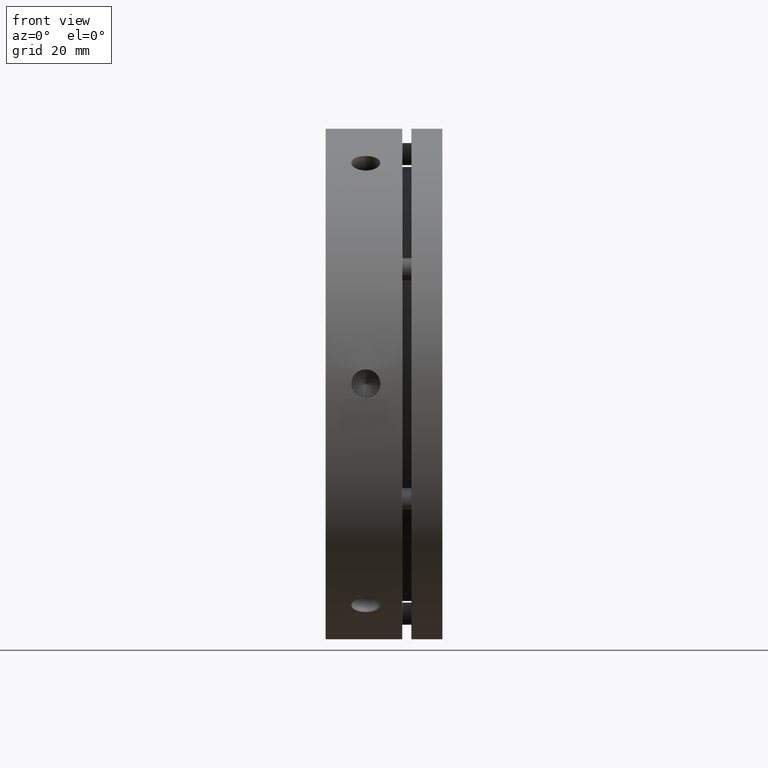
[diagram: clean part render]
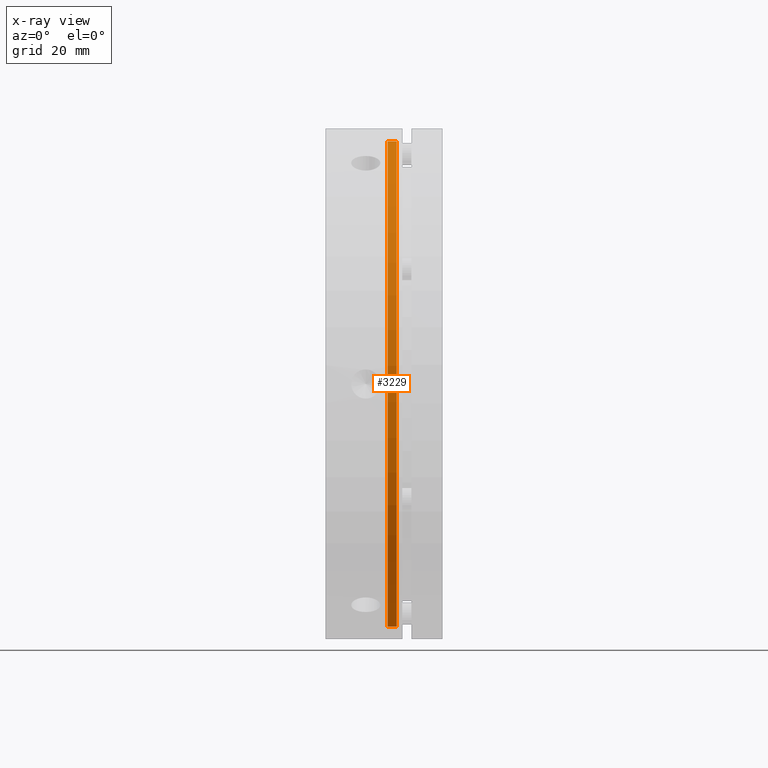
[diagram: x-ray — body ghosted, one internal face saturated and labeled with its STEP entity id]
A machine part, front view, then the same camera in x-ray: the body is ghosted and one INTERNAL B-rep face — a face not visible from any outside direction — is saturated and labeled: STEP entity #3229.
In plain terms, the highlighted cylindrical surface (partial cylindrical patch) has radius 66.5 mm, axis along (-1, 0, 0).
Its self-contained STEP definition (entity closure, byte-faithful):
#145 = EDGE_LOOP ( 'NONE', ( #1543, #1542, #1541, #1540 ) ) ;
#571 = AXIS2_PLACEMENT_3D ( 'NONE', #1281, #1282, #1283 ) ;
#589 = EDGE_CURVE ( 'NONE', #1821, #1820, #1066, .T. ) ;
#603 = EDGE_CURVE ( 'NONE', #1820, #1815, #1008, .T. ) ;
#742 = AXIS2_PLACEMENT_3D ( 'NONE', #4586, #4587, #4588 ) ;
#940 = CIRCLE ( 'NONE', #742, 66.50000000000000000 ) ;
#983 = LINE ( 'NONE', #4581, #993 ) ;
#993 = VECTOR ( 'NONE', #4582, 1000.000000000000000 ) ;
#1008 = LINE ( 'NONE', #1297, #1170 ) ;
#1066 = CIRCLE ( 'NONE', #571, 66.50000000000000000 ) ;
#1091 = CYLINDRICAL_SURFACE ( 'NONE', #1439, 66.50000000000000000 ) ;
#1125 = FACE_OUTER_BOUND ( 'NONE', #145, .T. ) ;
#1170 = VECTOR ( 'NONE', #1294, 1000.000000000000000 ) ;
#1281 = CARTESIAN_POINT ( 'NONE',  ( 19.49999999999998900, 0.0000000000000000000, 0.0000000000000000000 ) ) ;
#1282 = DIRECTION ( 'NONE',  ( 1.000000000000000000, -0.0000000000000000000, -0.0000000000000000000 ) ) ;
#1283 = DIRECTION ( 'NONE',  ( 0.0000000000000000000, 0.0000000000000000000, 1.000000000000000000 ) ) ;
#1294 = DIRECTION ( 'NONE',  ( -1.000000000000000000, 0.0000000000000000000, 0.0000000000000000000 ) ) ;
#1297 = CARTESIAN_POINT ( 'NONE',  ( 18.24999999999998900, 8.143901214329900000E-015, -66.50000000000000000 ) ) ;
#1439 = AXIS2_PLACEMENT_3D ( 'NONE', #4191, #4189, #4187 ) ;
#1540 = ORIENTED_EDGE ( 'NONE', *, *, #3484, .F. ) ;
#1541 = ORIENTED_EDGE ( 'NONE', *, *, #3483, .T. ) ;
#1542 = ORIENTED_EDGE ( 'NONE', *, *, #603, .T. ) ;
#1543 = ORIENTED_EDGE ( 'NONE', *, *, #589, .T. ) ;
#1814 = VERTEX_POINT ( 'NONE', #3860 ) ;
#1815 = VERTEX_POINT ( 'NONE', #3861 ) ;
#1820 = VERTEX_POINT ( 'NONE', #3866 ) ;
#1821 = VERTEX_POINT ( 'NONE', #3867 ) ;
#3229 = ADVANCED_FACE ( 'NONE', ( #1125 ), #1091, .F. ) ;
#3483 = EDGE_CURVE ( 'NONE', #1815, #1814, #940, .T. ) ;
#3484 = EDGE_CURVE ( 'NONE', #1821, #1814, #983, .T. ) ;
#3860 = CARTESIAN_POINT ( 'NONE',  ( 16.99999999999999300, 0.0000000000000000000, 66.50000000000000000 ) ) ;
#3861 = CARTESIAN_POINT ( 'NONE',  ( 16.99999999999999300, 8.143901214329900000E-015, -66.50000000000000000 ) ) ;
#3866 = CARTESIAN_POINT ( 'NONE',  ( 19.49999999999998900, 8.143901214329900000E-015, -66.50000000000000000 ) ) ;
#3867 = CARTESIAN_POINT ( 'NONE',  ( 19.49999999999998900, 0.0000000000000000000, 66.50000000000000000 ) ) ;
#4187 = DIRECTION ( 'NONE',  ( 0.0000000000000000000, 0.0000000000000000000, 1.000000000000000000 ) ) ;
#4189 = DIRECTION ( 'NONE',  ( -1.000000000000000000, 0.0000000000000000000, 0.0000000000000000000 ) ) ;
#4191 = CARTESIAN_POINT ( 'NONE',  ( 18.24999999999998900, 0.0000000000000000000, 0.0000000000000000000 ) ) ;
#4581 = CARTESIAN_POINT ( 'NONE',  ( 18.24999999999998900, 0.0000000000000000000, 66.50000000000000000 ) ) ;
#4582 = DIRECTION ( 'NONE',  ( -1.000000000000000000, 0.0000000000000000000, 0.0000000000000000000 ) ) ;
#4586 = CARTESIAN_POINT ( 'NONE',  ( 16.99999999999999300, 0.0000000000000000000, 0.0000000000000000000 ) ) ;
#4587 = DIRECTION ( 'NONE',  ( -1.000000000000000000, 0.0000000000000000000, 0.0000000000000000000 ) ) ;
#4588 = DIRECTION ( 'NONE',  ( 0.0000000000000000000, 0.0000000000000000000, 1.000000000000000000 ) ) ;